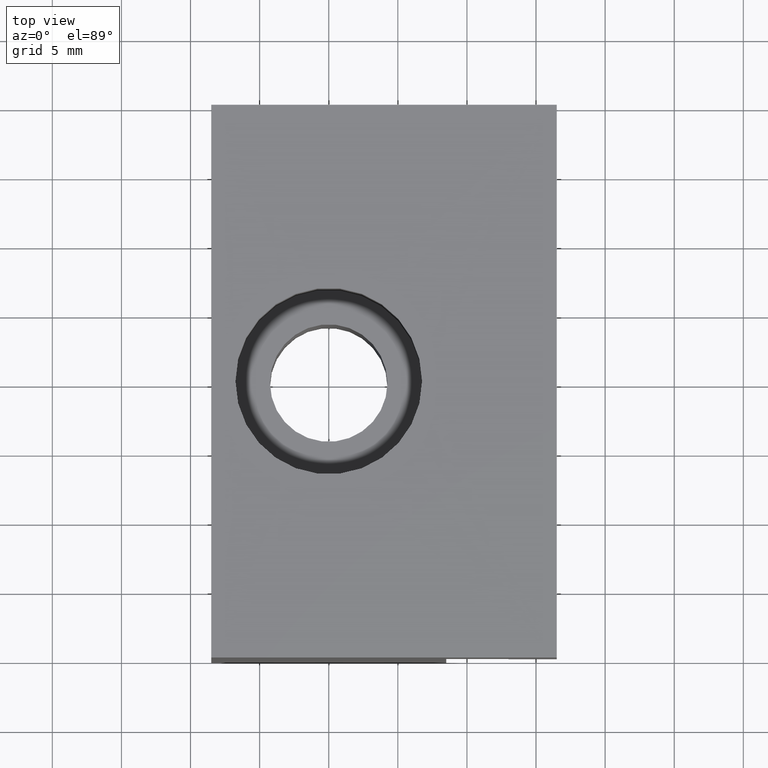
[diagram: clean part render]
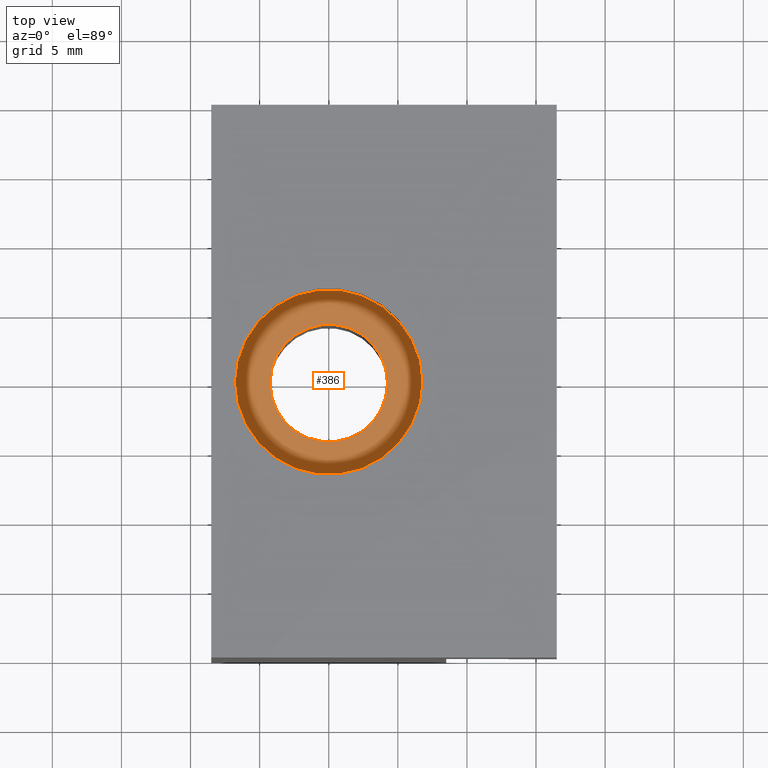
[diagram: same view with one face highlighted and labeled with its STEP entity id]
A machine part, top view. The second image highlights one B-rep face of the part: STEP entity #386.
In plain terms, the highlighted planar face has unit normal (0, 0, -1).
Its self-contained STEP definition (entity closure, byte-faithful):
#327=CARTESIAN_POINT('',(-4.249999999981810,9.797174E-016,15.999998935351869));
#328=VERTEX_POINT('',#327);
#338=CARTESIAN_POINT('',(4.249999999981810,9.797174E-016,15.999998935351869));
#339=VERTEX_POINT('',#338);
#340=CARTESIAN_POINT('',(0.0,9.797174E-016,15.999998935351869));
#341=DIRECTION('',(0.0,0.0,1.0));
#342=DIRECTION('',(-1.0,0.0,0.0));
#343=AXIS2_PLACEMENT_3D('',#340,#341,#342);
#344=CIRCLE('',#343,4.249999999981810);
#345=EDGE_CURVE('',#328,#339,#344,.T.);
#347=CARTESIAN_POINT('',(0.0,9.797174E-016,15.999998935351869));
#348=DIRECTION('',(0.0,0.0,1.0));
#349=DIRECTION('',(-1.0,0.0,0.0));
#350=AXIS2_PLACEMENT_3D('',#347,#348,#349);
#351=CIRCLE('',#350,4.249999999981810);
#352=EDGE_CURVE('',#339,#328,#351,.T.);
#357=CARTESIAN_POINT('',(13.499999999949068,13.499999999949070,15.999998935351869));
#358=DIRECTION('',(0.0,0.0,-1.0));
#359=DIRECTION('',(0.0,-1.0,0.0));
#360=AXIS2_PLACEMENT_3D('',#357,#358,#359);
#361=PLANE('',#360);
#362=CARTESIAN_POINT('',(-6.749999999974534,9.797174E-016,15.999998935351869));
#363=VERTEX_POINT('',#362);
#364=CARTESIAN_POINT('',(6.749999999974534,9.797174E-016,15.999998935351869));
#365=VERTEX_POINT('',#364);
#366=CARTESIAN_POINT('',(0.0,9.797174E-016,15.999998935351869));
#367=DIRECTION('',(0.0,0.0,1.0));
#368=DIRECTION('',(-1.0,0.0,0.0));
#369=AXIS2_PLACEMENT_3D('',#366,#367,#368);
#370=CIRCLE('',#369,6.749999999974534);
#371=EDGE_CURVE('',#363,#365,#370,.T.);
#372=ORIENTED_EDGE('',*,*,#371,.T.);
#373=CARTESIAN_POINT('',(0.0,9.797174E-016,15.999998935351869));
#374=DIRECTION('',(0.0,0.0,1.0));
#375=DIRECTION('',(-1.0,0.0,0.0));
#376=AXIS2_PLACEMENT_3D('',#373,#374,#375);
#377=CIRCLE('',#376,6.749999999974534);
#378=EDGE_CURVE('',#365,#363,#377,.T.);
#379=ORIENTED_EDGE('',*,*,#378,.T.);
#380=EDGE_LOOP('',(#372,#379));
#381=FACE_OUTER_BOUND('',#380,.T.);
#382=ORIENTED_EDGE('',*,*,#352,.F.);
#383=ORIENTED_EDGE('',*,*,#345,.F.);
#384=EDGE_LOOP('',(#382,#383));
#385=FACE_BOUND('',#384,.T.);
#386=ADVANCED_FACE('',(#381,#385),#361,.F.);